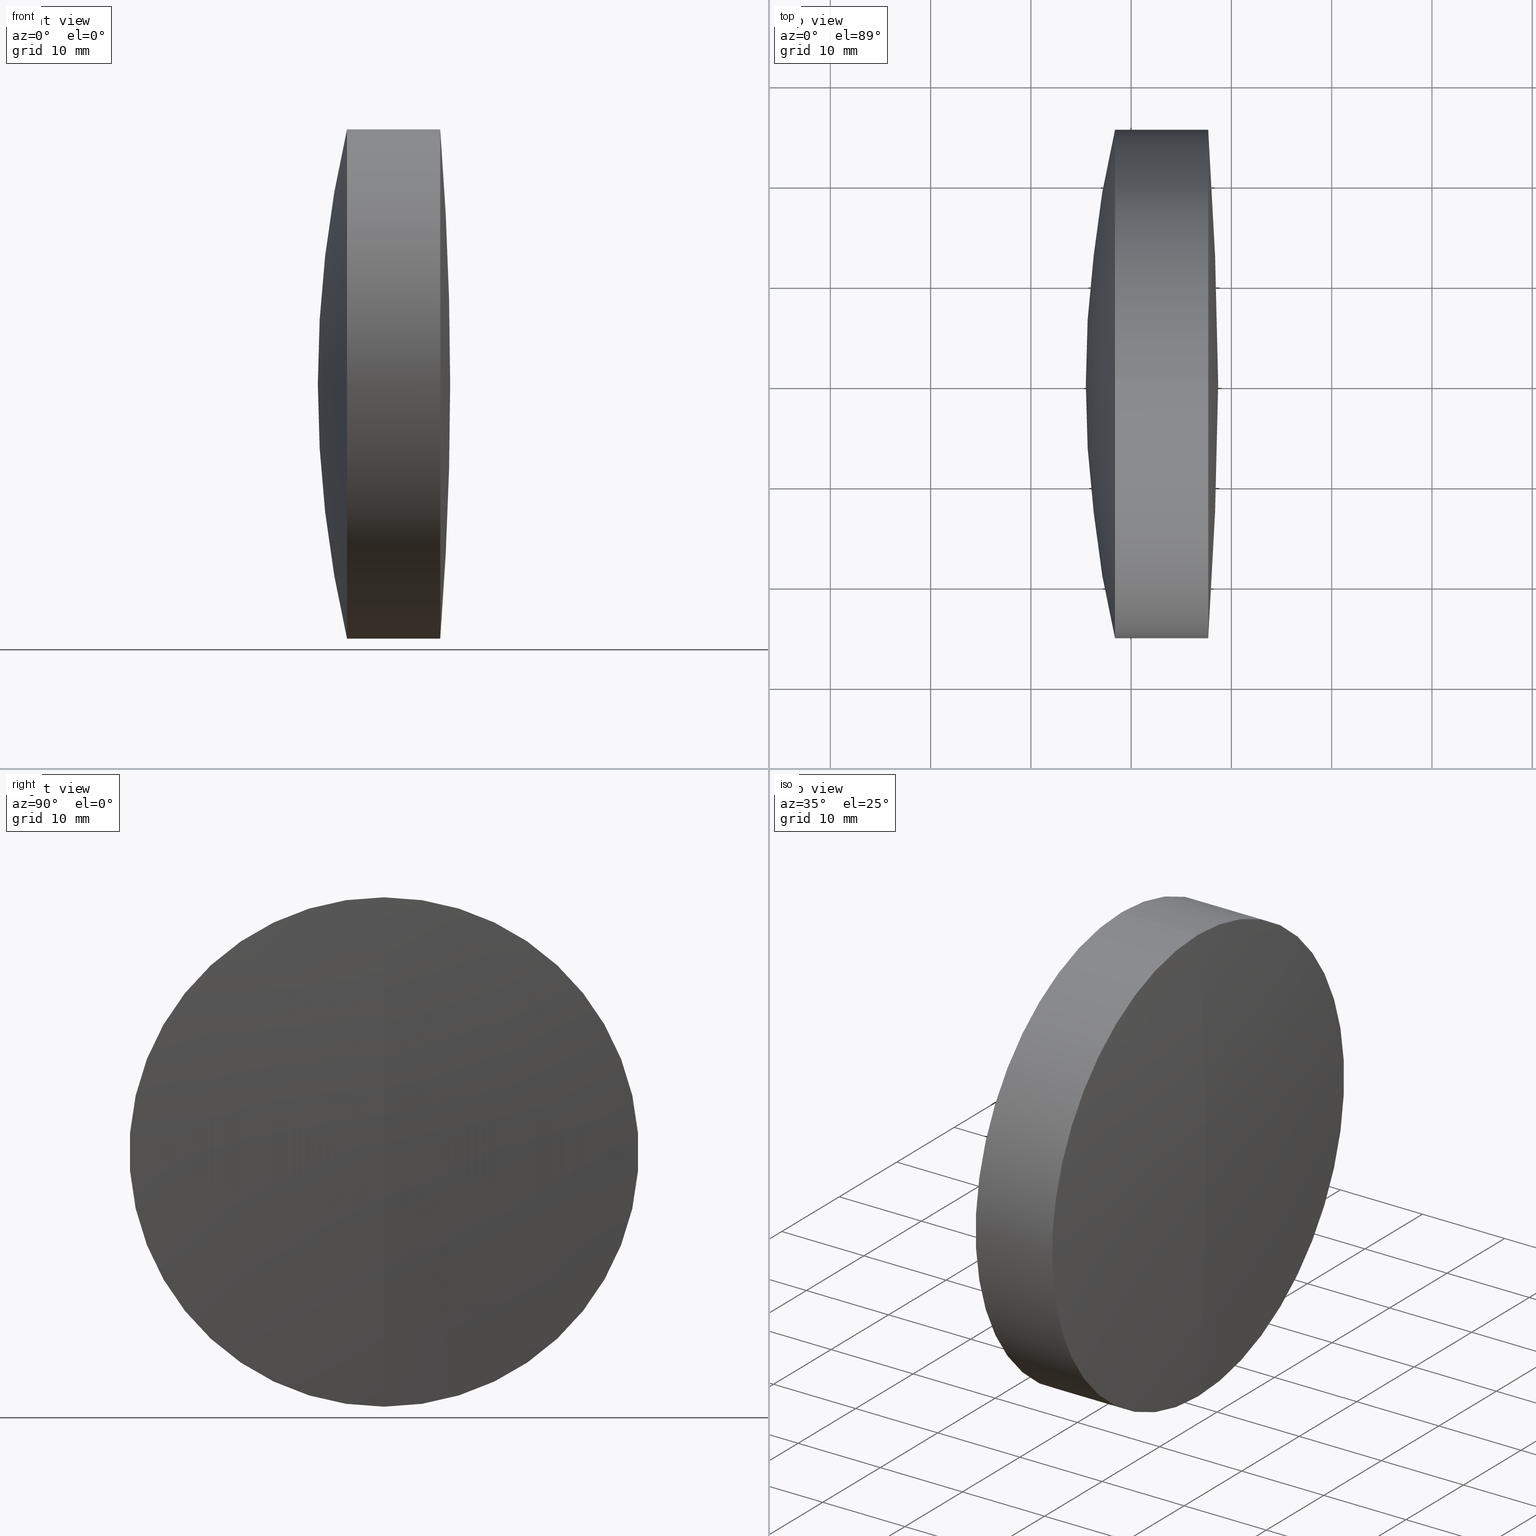
[diagram: canonical four-view strip — front | top / right | iso, engineering-drawing reading convention]
A machine part, canonical four-view strip (front | top / right | iso — engineering-drawing reading convention). The complete STEP part file that produces these views, byte-faithful:
ISO-10303-21;
HEADER;
FILE_DESCRIPTION (( 'STEP AP214' ),
    '1' );
FILE_NAME ('145136.STEP',
    '2019-06-05T02:14:15',
    ( 'user' ),
    ( '΢���й�' ),
    'SwSTEP 2.0',
    'SolidWorks 2016',
    '' );
FILE_SCHEMA (( 'AUTOMOTIVE_DESIGN' ));
ENDSEC;

DATA;
#1 = AXIS2_PLACEMENT_3D ( 'NONE', #240, #75, #251 ) ;
#2 = ORIENTED_EDGE ( 'NONE', *, *, #297, .F. ) ;
#3 = CARTESIAN_POINT ( 'NONE',  ( 124.5233095260452400, 3.110602869834276100E-015, -25.39999999999999100 ) ) ;
#4 = ORIENTED_EDGE ( 'NONE', *, *, #304, .T. ) ;
#5 = CIRCLE ( 'NONE', #319, 25.40000000000004800 ) ;
#6 = EDGE_LOOP ( 'NONE', ( #318, #256, #2, #66 ) ) ;
#7 = CARTESIAN_POINT ( 'NONE',  ( 657.6805592743230600, 0.0000000000000000000, -8.998188785850827300E-015 ) ) ;
#8 = MECHANICAL_DESIGN_GEOMETRIC_PRESENTATION_REPRESENTATION (  '', ( #145 ), #246 ) ;
#9 = CIRCLE ( 'NONE', #241, 25.39999999999997000 ) ;
#10 = CYLINDRICAL_SURFACE ( 'NONE', #160, 25.40000000000000900 ) ;
#11 = SPHERICAL_SURFACE ( 'NONE', #189, 325.1000000000000200 ) ;
#12 = CARTESIAN_POINT ( 'NONE',  ( 550.2556910666054400, 0.0000000000000000000, 0.0000000000000000000 ) ) ;
#13 = AXIS2_PLACEMENT_3D ( 'NONE', #343, #135, #202 ) ;
#14 = ORIENTED_EDGE ( 'NONE', *, *, #17, .F. ) ;
#15 = EDGE_CURVE ( 'NONE', #117, #81, #157, .T. ) ;
#16 = CIRCLE ( 'NONE', #130, 325.1000000000000200 ) ;
#17 = EDGE_CURVE ( 'NONE', #113, #260, #328, .T. ) ;
#18 = ADVANCED_FACE ( 'NONE', ( #57 ), #239, .T. ) ;
#19 = AXIS2_PLACEMENT_3D ( 'NONE', #141, #326, #327 ) ;
#20 = EDGE_LOOP ( 'NONE', ( #266, #142, #128 ) ) ;
#21 = EDGE_CURVE ( 'NONE', #257, #132, #250, .T. ) ;
#22 = CARTESIAN_POINT ( 'NONE',  ( 545.4805592743229000, 0.0000000000000000000, -2.127920242634172300E-015 ) ) ;
#23 = FACE_OUTER_BOUND ( 'NONE', #44, .T. ) ;
#24 = DIRECTION ( 'NONE',  ( 0.0000000000000000000, 0.0000000000000000000, 1.000000000000000000 ) ) ;
#25 = CARTESIAN_POINT ( 'NONE',  ( -0.5519199926577972300, 0.0000000000000000000, 0.0000000000000000000 ) ) ;
#26 = STYLED_ITEM ( 'NONE', ( #139 ), #97 ) ;
#27 = CIRCLE ( 'NONE', #103, 95.89999999999999100 ) ;
#28 = FILL_AREA_STYLE_COLOUR ( '', #295 ) ;
#29 = DIRECTION ( 'NONE',  ( 0.0000000000000000000, -1.224646799147353500E-016, 1.000000000000000000 ) ) ;
#30 = ORIENTED_EDGE ( 'NONE', *, *, #155, .T. ) ;
#31 = CARTESIAN_POINT ( 'NONE',  ( -0.5519199926577972300, 0.0000000000000000000, 0.0000000000000000000 ) ) ;
#32 = FACE_OUTER_BOUND ( 'NONE', #45, .T. ) ;
#33 = AXIS2_PLACEMENT_3D ( 'NONE', #315, #67, #263 ) ;
#34 = DIRECTION ( 'NONE',  ( -1.000000000000000000, -0.0000000000000000000, -0.0000000000000000000 ) ) ;
#35 = DIRECTION ( 'NONE',  ( 0.0000000000000000000, -1.000000000000000000, 0.0000000000000000000 ) ) ;
#36 = VECTOR ( 'NONE', #149, 1000.000000000000000 ) ;
#37 = ORIENTED_EDGE ( 'NONE', *, *, #207, .F. ) ;
#38 = SURFACE_STYLE_FILL_AREA ( #47 ) ;
#39 = FILL_AREA_STYLE_COLOUR ( '', #268 ) ;
#40 = CARTESIAN_POINT ( 'NONE',  ( 548.3934145591277900, 0.0000000000000000000, 0.0000000000000000000 ) ) ;
#41 = AXIS2_PLACEMENT_3D ( 'NONE', #281, #159, #119 ) ;
#42 = CYLINDRICAL_SURFACE ( 'NONE', #204, 25.39999999999999100 ) ;
#43 = DIRECTION ( 'NONE',  ( 0.0000000000000000000, -1.000000000000000000, 0.0000000000000000000 ) ) ;
#44 = EDGE_LOOP ( 'NONE', ( #52, #338, #14 ) ) ;
#45 = EDGE_LOOP ( 'NONE', ( #278, #237, #248 ) ) ;
#46 = SPHERICAL_SURFACE ( 'NONE', #317, 112.2000000000000600 ) ;
#47 = FILL_AREA_STYLE ('',( #39 ) ) ;
#48 = MANIFOLD_SOLID_BREP ( '��ת1', #200 ) ;
#49 = VERTEX_POINT ( 'NONE', #22 ) ;
#50 = DIRECTION ( 'NONE',  ( 0.0000000000000000000, 0.0000000000000000000, 1.000000000000000000 ) ) ;
#51 = AXIS2_PLACEMENT_3D ( 'NONE', #184, #87, #136 ) ;
#52 = ORIENTED_EDGE ( 'NONE', *, *, #304, .F. ) ;
#53 = CARTESIAN_POINT ( 'NONE',  ( 557.6867918586409600, 0.0000000000000000000, 25.39999999999997000 ) ) ;
#54 = CARTESIAN_POINT ( 'NONE',  ( 557.6867918586409600, 3.110602869834276100E-015, -25.39999999999997000 ) ) ;
#55 = ORIENTED_EDGE ( 'NONE', *, *, #288, .T. ) ;
#56 = CARTESIAN_POINT ( 'NONE',  ( 550.2556910666054400, 0.0000000000000000000, 25.40000000000002700 ) ) ;
#57 = FACE_OUTER_BOUND ( 'NONE', #217, .T. ) ;
#58 = DIRECTION ( 'NONE',  ( -1.000000000000000000, -0.0000000000000000000, -0.0000000000000000000 ) ) ;
#59 = EDGE_LOOP ( 'NONE', ( #340, #316, #114 ) ) ;
#60 = LINE ( 'NONE', #3, #273 ) ;
#61 = AXIS2_PLACEMENT_3D ( 'NONE', #208, #201, #282 ) ;
#62 = CARTESIAN_POINT ( 'NONE',  ( 553.6805592743230600, 0.0000000000000000000, -5.818154175276403000E-016 ) ) ;
#63 = EDGE_CURVE ( 'NONE', #174, #287, #215, .T. ) ;
#64 = SURFACE_STYLE_USAGE ( .BOTH. , #116 ) ;
#65 = DIRECTION ( 'NONE',  ( 0.0000000000000000000, 0.0000000000000000000, 1.000000000000000000 ) ) ;
#66 = ORIENTED_EDGE ( 'NONE', *, *, #198, .F. ) ;
#67 = DIRECTION ( 'NONE',  ( 0.0000000000000000000, 1.000000000000000000, 0.0000000000000000000 ) ) ;
#68 = AXIS2_PLACEMENT_3D ( 'NONE', #123, #244, #82 ) ;
#69 = CARTESIAN_POINT ( 'NONE',  ( 550.2556910666054400, 3.110602869834276100E-015, -25.39999999999999100 ) ) ;
#70 = FACE_OUTER_BOUND ( 'NONE', #224, .T. ) ;
#71 = FACE_OUTER_BOUND ( 'NONE', #209, .T. ) ;
#72 = DIRECTION ( 'NONE',  ( 0.0000000000000000000, 0.0000000000000000000, 1.000000000000000000 ) ) ;
#73 = ORIENTED_EDGE ( 'NONE', *, *, #205, .T. ) ;
#74 = AXIS2_PLACEMENT_3D ( 'NONE', #85, #299, #29 ) ;
#75 = DIRECTION ( 'NONE',  ( 0.0000000000000000000, -1.000000000000000000, 0.0000000000000000000 ) ) ;
#76 = SPHERICAL_SURFACE ( 'NONE', #110, 95.89999999999999100 ) ;
#77 = CIRCLE ( 'NONE', #187, 25.40000000000004800 ) ;
#78 = DIRECTION ( 'NONE',  ( 0.0000000000000000000, 0.0000000000000000000, 1.000000000000000000 ) ) ;
#79 = CARTESIAN_POINT ( 'NONE',  ( -0.5519199926577972300, 3.110602869834278000E-015, -25.40000000000000900 ) ) ;
#80 = CARTESIAN_POINT ( 'NONE',  ( -0.5519199926577972300, 0.0000000000000000000, 25.40000000000000900 ) ) ;
#81 = VERTEX_POINT ( 'NONE', #226 ) ;
#82 = DIRECTION ( 'NONE',  ( 0.0000000000000000000, -1.224646799147353000E-016, 1.000000000000000000 ) ) ;
#83 =( NAMED_UNIT ( * ) SI_UNIT ( $, .STERADIAN. ) SOLID_ANGLE_UNIT ( ) );
#84 = FACE_OUTER_BOUND ( 'NONE', #59, .T. ) ;
#85 = CARTESIAN_POINT ( 'NONE',  ( 657.6805592743230600, 0.0000000000000000000, -8.998188785850827300E-015 ) ) ;
#86 = EDGE_CURVE ( 'NONE', #300, #287, #177, .T. ) ;
#87 = DIRECTION ( 'NONE',  ( 0.0000000000000000000, 1.000000000000000000, 0.0000000000000000000 ) ) ;
#88 = EDGE_LOOP ( 'NONE', ( #330, #122, #308, #225 ) ) ;
#89 = EDGE_CURVE ( 'NONE', #174, #300, #16, .T. ) ;
#90 = LINE ( 'NONE', #79, #176 ) ;
#91 =( LENGTH_UNIT ( ) NAMED_UNIT ( * ) SI_UNIT ( .MILLI., .METRE. ) );
#92 = CIRCLE ( 'NONE', #74, 112.2000000000000600 ) ;
#93 = APPLICATION_CONTEXT ( 'automotive_design' ) ;
#94 =( GEOMETRIC_REPRESENTATION_CONTEXT ( 3 ) GLOBAL_UNCERTAINTY_ASSIGNED_CONTEXT ( ( #227 ) ) GLOBAL_UNIT_ASSIGNED_CONTEXT ( ( #170, #245, #83 ) ) REPRESENTATION_CONTEXT ( 'NONE', 'WORKASPACE' ) );
#95 = ORIENTED_EDGE ( 'NONE', *, *, #231, .F. ) ;
#96 = SURFACE_STYLE_FILL_AREA ( #143 ) ;
#97 = MANIFOLD_SOLID_BREP ( '��ת3', #188 ) ;
#98 = CARTESIAN_POINT ( 'NONE',  ( 557.6867918586409600, 0.0000000000000000000, 0.0000000000000000000 ) ) ;
#99 =( NAMED_UNIT ( * ) PLANE_ANGLE_UNIT ( ) SI_UNIT ( $, .RADIAN. ) );
#100 = MECHANICAL_DESIGN_GEOMETRIC_PRESENTATION_REPRESENTATION (  '', ( #228 ), #333 ) ;
#101 = APPLICATION_PROTOCOL_DEFINITION ( 'draft international standard', 'automotive_design', 1998, #93 ) ;
#102 = SURFACE_STYLE_USAGE ( .BOTH. , #126 ) ;
#103 = AXIS2_PLACEMENT_3D ( 'NONE', #339, #35, #345 ) ;
#104 = DIRECTION ( 'NONE',  ( 0.0000000000000000000, 0.0000000000000000000, 1.000000000000000000 ) ) ;
#105 = PRESENTATION_STYLE_ASSIGNMENT (( #112 ) ) ;
#106 = AXIS2_PLACEMENT_3D ( 'NONE', #344, #197, #72 ) ;
#107 = ORIENTED_EDGE ( 'NONE', *, *, #297, .T. ) ;
#108 = COLOUR_RGB ( '',1.000000000000000000, 1.000000000000000000, 1.000000000000000000 ) ;
#109 = CARTESIAN_POINT ( 'NONE',  ( 557.6867918586409600, 0.0000000000000000000, 0.0000000000000000000 ) ) ;
#110 = AXIS2_PLACEMENT_3D ( 'NONE', #151, #243, #324 ) ;
#111 = PRODUCT ( '145136', '145136', '', ( #220 ) ) ;
#112 = SURFACE_STYLE_USAGE ( .BOTH. , #277 ) ;
#113 = VERTEX_POINT ( 'NONE', #69 ) ;
#114 = ORIENTED_EDGE ( 'NONE', *, *, #152, .T. ) ;
#115 = LINE ( 'NONE', #80, #140 ) ;
#116 = SURFACE_SIDE_STYLE ('',( #96 ) ) ;
#117 = VERTEX_POINT ( 'NONE', #258 ) ;
#118 =( LENGTH_UNIT ( ) NAMED_UNIT ( * ) SI_UNIT ( .MILLI., .METRE. ) );
#119 = DIRECTION ( 'NONE',  ( 0.0000000000000000000, -1.224646799147353000E-016, 1.000000000000000000 ) ) ;
#120 = UNCERTAINTY_MEASURE_WITH_UNIT (LENGTH_MEASURE( 1.000000000000000100E-005 ), #91, 'distance_accuracy_value', 'NONE');
#121 = EDGE_CURVE ( 'NONE', #230, #260, #27, .T. ) ;
#122 = ORIENTED_EDGE ( 'NONE', *, *, #17, .T. ) ;
#123 = CARTESIAN_POINT ( 'NONE',  ( 457.7805592743230200, 0.0000000000000000000, -6.453996819439198100E-015 ) ) ;
#124 = DIRECTION ( 'NONE',  ( 0.0000000000000000000, 0.0000000000000000000, 1.000000000000000000 ) ) ;
#125 = ORIENTED_EDGE ( 'NONE', *, *, #288, .F. ) ;
#126 = SURFACE_SIDE_STYLE ('',( #191 ) ) ;
#127 = CIRCLE ( 'NONE', #336, 25.39999999999999100 ) ;
#128 = ORIENTED_EDGE ( 'NONE', *, *, #137, .F. ) ;
#129 = ADVANCED_FACE ( 'NONE', ( #70 ), #206, .T. ) ;
#130 = AXIS2_PLACEMENT_3D ( 'NONE', #214, #43, #303 ) ;
#131 = ADVANCED_FACE ( 'NONE', ( #301 ), #42, .T. ) ;
#132 = VERTEX_POINT ( 'NONE', #56 ) ;
#133 = CARTESIAN_POINT ( 'NONE',  ( 558.6805592743230600, 0.0000000000000000000, 1.990663372014022500E-014 ) ) ;
#134 = CARTESIAN_POINT ( 'NONE',  ( 457.7805592743230200, 0.0000000000000000000, -6.453996819439198100E-015 ) ) ;
#135 = DIRECTION ( 'NONE',  ( -1.000000000000000000, -0.0000000000000000000, -0.0000000000000000000 ) ) ;
#136 = DIRECTION ( 'NONE',  ( 0.0000000000000000000, 0.0000000000000000000, 1.000000000000000000 ) ) ;
#137 = EDGE_CURVE ( 'NONE', #287, #300, #9, .T. ) ;
#138 = ORIENTED_EDGE ( 'NONE', *, *, #86, .F. ) ;
#139 = PRESENTATION_STYLE_ASSIGNMENT (( #64 ) ) ;
#140 = VECTOR ( 'NONE', #296, 1000.000000000000000 ) ;
#141 = CARTESIAN_POINT ( 'NONE',  ( 550.2556910666054400, 0.0000000000000000000, 0.0000000000000000000 ) ) ;
#142 = ORIENTED_EDGE ( 'NONE', *, *, #89, .T. ) ;
#143 = FILL_AREA_STYLE ('',( #323 ) ) ;
#144 = ORIENTED_EDGE ( 'NONE', *, *, #155, .F. ) ;
#145 = STYLED_ITEM ( 'NONE', ( #105 ), #48 ) ;
#146 = DIRECTION ( 'NONE',  ( 0.0000000000000000000, 1.000000000000000000, 0.0000000000000000000 ) ) ;
#147 = AXIS2_PLACEMENT_3D ( 'NONE', #320, #164, #276 ) ;
#148 = ORIENTED_EDGE ( 'NONE', *, *, #121, .F. ) ;
#149 = DIRECTION ( 'NONE',  ( -1.000000000000000000, -0.0000000000000000000, -0.0000000000000000000 ) ) ;
#150 = LINE ( 'NONE', #305, #36 ) ;
#151 = CARTESIAN_POINT ( 'NONE',  ( 457.7805592743230200, 0.0000000000000000000, -6.453996819439198100E-015 ) ) ;
#152 = EDGE_CURVE ( 'NONE', #132, #286, #5, .T. ) ;
#153 = ORIENTED_EDGE ( 'NONE', *, *, #180, .F. ) ;
#154 = PRODUCT_DEFINITION_SHAPE ( 'NONE', 'NONE',  #167 ) ;
#155 = EDGE_CURVE ( 'NONE', #287, #286, #90, .T. ) ;
#156 = SHAPE_DEFINITION_REPRESENTATION ( #154, #290 ) ;
#157 = CIRCLE ( 'NONE', #264, 25.39999999999998800 ) ;
#158 = ADVANCED_FACE ( 'NONE', ( #195 ), #10, .T. ) ;
#159 = DIRECTION ( 'NONE',  ( -0.0000000000000000000, 1.000000000000000000, 1.224646799147353200E-016 ) ) ;
#160 = AXIS2_PLACEMENT_3D ( 'NONE', #25, #242, #24 ) ;
#161 = SPHERICAL_SURFACE ( 'NONE', #33, 112.2000000000000600 ) ;
#162 = ADVANCED_FACE ( 'NONE', ( #302 ), #222, .T. ) ;
#163 = ORIENTED_EDGE ( 'NONE', *, *, #63, .T. ) ;
#164 = DIRECTION ( 'NONE',  ( 0.0000000000000000000, 0.0000000000000000000, 1.000000000000000000 ) ) ;
#165 = PRESENTATION_STYLE_ASSIGNMENT (( #102 ) ) ;
#166 = CIRCLE ( 'NONE', #68, 95.89999999999999100 ) ;
#167 = PRODUCT_DEFINITION ( 'δ֪', '', #185, #221 ) ;
#168 = UNCERTAINTY_MEASURE_WITH_UNIT (LENGTH_MEASURE( 1.000000000000000100E-005 ), #118, 'distance_accuracy_value', 'NONE');
#169 = DIRECTION ( 'NONE',  ( 0.0000000000000000000, 1.000000000000000000, 0.0000000000000000000 ) ) ;
#170 =( LENGTH_UNIT ( ) NAMED_UNIT ( * ) SI_UNIT ( .MILLI., .METRE. ) );
#171 = CARTESIAN_POINT ( 'NONE',  ( 124.5233095260452400, 0.0000000000000000000, 0.0000000000000000000 ) ) ;
#172 = DIRECTION ( 'NONE',  ( -1.000000000000000000, -0.0000000000000000000, -0.0000000000000000000 ) ) ;
#173 = DIRECTION ( 'NONE',  ( 0.0000000000000000000, 1.000000000000000000, 0.0000000000000000000 ) ) ;
#174 = VERTEX_POINT ( 'NONE', #133 ) ;
#175 = CARTESIAN_POINT ( 'NONE',  ( 553.6805592743230600, 0.0000000000000000000, -5.818154175276403000E-016 ) ) ;
#176 = VECTOR ( 'NONE', #312, 1000.000000000000000 ) ;
#177 = CIRCLE ( 'NONE', #252, 25.39999999999997000 ) ;
#178 = ORIENTED_EDGE ( 'NONE', *, *, #89, .F. ) ;
#179 = EDGE_CURVE ( 'NONE', #113, #117, #60, .T. ) ;
#180 = EDGE_CURVE ( 'NONE', #286, #132, #77, .T. ) ;
#181 = ORIENTED_EDGE ( 'NONE', *, *, #207, .T. ) ;
#182 = DIRECTION ( 'NONE',  ( 0.0000000000000000000, -1.000000000000000000, 0.0000000000000000000 ) ) ;
#183 = ADVANCED_FACE ( 'NONE', ( #293 ), #46, .T. ) ;
#184 = CARTESIAN_POINT ( 'NONE',  ( 233.5805592743230400, 0.0000000000000000000, 0.0000000000000000000 ) ) ;
#185 = PRODUCT_DEFINITION_FORMATION_WITH_SPECIFIED_SOURCE ( '�κ�', '', #111, .NOT_KNOWN. ) ;
#186 = APPLICATION_PROTOCOL_DEFINITION ( 'draft international standard', 'automotive_design', 1998, #289 ) ;
#187 = AXIS2_PLACEMENT_3D ( 'NONE', #307, #306, #196 ) ;
#188 = CLOSED_SHELL ( 'NONE', ( #213, #129, #314, #216, #158, #265 ) ) ;
#189 = AXIS2_PLACEMENT_3D ( 'NONE', #275, #146, #65 ) ;
#190 = ORIENTED_EDGE ( 'NONE', *, *, #15, .T. ) ;
#191 = SURFACE_STYLE_FILL_AREA ( #259 ) ;
#192 = DIRECTION ( 'NONE',  ( -1.000000000000000000, -0.0000000000000000000, -0.0000000000000000000 ) ) ;
#193 = ORIENTED_EDGE ( 'NONE', *, *, #205, .F. ) ;
#194 = CARTESIAN_POINT ( 'NONE',  ( 657.6805592743230600, 0.0000000000000000000, -8.998188785850827300E-015 ) ) ;
#195 = FACE_OUTER_BOUND ( 'NONE', #223, .T. ) ;
#196 = DIRECTION ( 'NONE',  ( 0.0000000000000000000, 0.0000000000000000000, 1.000000000000000000 ) ) ;
#197 = DIRECTION ( 'NONE',  ( 0.0000000000000000000, 1.000000000000000000, 0.0000000000000000000 ) ) ;
#198 = EDGE_CURVE ( 'NONE', #260, #81, #150, .T. ) ;
#199 =( LENGTH_UNIT ( ) NAMED_UNIT ( * ) SI_UNIT ( .MILLI., .METRE. ) );
#200 = CLOSED_SHELL ( 'NONE', ( #18, #131, #183, #262, #162, #337 ) ) ;
#201 = DIRECTION ( 'NONE',  ( 0.0000000000000000000, 1.000000000000000000, 0.0000000000000000000 ) ) ;
#202 = DIRECTION ( 'NONE',  ( 0.0000000000000000000, 0.0000000000000000000, 1.000000000000000000 ) ) ;
#203 = EDGE_CURVE ( 'NONE', #257, #286, #238, .T. ) ;
#204 = AXIS2_PLACEMENT_3D ( 'NONE', #171, #249, #331 ) ;
#205 = EDGE_CURVE ( 'NONE', #81, #49, #329, .T. ) ;
#206 = CYLINDRICAL_SURFACE ( 'NONE', #269, 25.40000000000000900 ) ;
#207 = EDGE_CURVE ( 'NONE', #117, #49, #92, .T. ) ;
#208 = CARTESIAN_POINT ( 'NONE',  ( 457.7805592743230200, 0.0000000000000000000, -6.453996819439198100E-015 ) ) ;
#209 = EDGE_LOOP ( 'NONE', ( #37, #190, #73 ) ) ;
#210 =( GEOMETRIC_REPRESENTATION_CONTEXT ( 3 ) GLOBAL_UNCERTAINTY_ASSIGNED_CONTEXT ( ( #120 ) ) GLOBAL_UNIT_ASSIGNED_CONTEXT ( ( #91, #279, #347 ) ) REPRESENTATION_CONTEXT ( 'NONE', 'WORKASPACE' ) );
#211 = CARTESIAN_POINT ( 'NONE',  ( 550.2556910666054400, 0.0000000000000000000, 25.39999999999999100 ) ) ;
#212 = FACE_OUTER_BOUND ( 'NONE', #270, .T. ) ;
#213 = ADVANCED_FACE ( 'NONE', ( #212 ), #11, .T. ) ;
#214 = CARTESIAN_POINT ( 'NONE',  ( 233.5805592743230400, 0.0000000000000000000, 0.0000000000000000000 ) ) ;
#215 = CIRCLE ( 'NONE', #41, 325.1000000000000200 ) ;
#216 = ADVANCED_FACE ( 'NONE', ( #84 ), #346, .F. ) ;
#217 = EDGE_LOOP ( 'NONE', ( #148, #4, #95 ) ) ;
#218 = CARTESIAN_POINT ( 'NONE',  ( 550.2556910666054400, 0.0000000000000000000, 0.0000000000000000000 ) ) ;
#219 = DIRECTION ( 'NONE',  ( -1.000000000000000000, -0.0000000000000000000, -0.0000000000000000000 ) ) ;
#220 = PRODUCT_CONTEXT ( 'NONE', #289, 'mechanical' ) ;
#221 = PRODUCT_DEFINITION_CONTEXT ( 'detailed design', #93, 'design' ) ;
#222 = CYLINDRICAL_SURFACE ( 'NONE', #285, 25.39999999999999100 ) ;
#223 = EDGE_LOOP ( 'NONE', ( #144, #310, #55, #153 ) ) ;
#224 = EDGE_LOOP ( 'NONE', ( #334, #30, #325, #125 ) ) ;
#225 = ORIENTED_EDGE ( 'NONE', *, *, #15, .F. ) ;
#226 = CARTESIAN_POINT ( 'NONE',  ( 548.3934145591277900, 0.0000000000000000000, 25.39999999999999100 ) ) ;
#227 = UNCERTAINTY_MEASURE_WITH_UNIT (LENGTH_MEASURE( 1.000000000000000100E-005 ), #170, 'distance_accuracy_value', 'NONE');
#228 = STYLED_ITEM ( 'NONE', ( #165 ), #290 ) ;
#229 =( NAMED_UNIT ( * ) PLANE_ANGLE_UNIT ( ) SI_UNIT ( $, .RADIAN. ) );
#230 = VERTEX_POINT ( 'NONE', #62 ) ;
#231 = EDGE_CURVE ( 'NONE', #260, #113, #127, .T. ) ;
#232 = SPHERICAL_SURFACE ( 'NONE', #106, 95.89999999999999100 ) ;
#233 = DIRECTION ( 'NONE',  ( -1.000000000000000000, -0.0000000000000000000, -0.0000000000000000000 ) ) ;
#234 = DIRECTION ( 'NONE',  ( 0.0000000000000000000, 0.0000000000000000000, 1.000000000000000000 ) ) ;
#235 = PRODUCT_RELATED_PRODUCT_CATEGORY ( 'part', '', ( #111 ) ) ;
#236 = DIRECTION ( 'NONE',  ( 0.0000000000000000000, 0.0000000000000000000, 1.000000000000000000 ) ) ;
#237 = ORIENTED_EDGE ( 'NONE', *, *, #203, .T. ) ;
#238 = CIRCLE ( 'NONE', #271, 95.89999999999999100 ) ;
#239 = SPHERICAL_SURFACE ( 'NONE', #61, 95.89999999999999100 ) ;
#240 = CARTESIAN_POINT ( 'NONE',  ( 457.7805592743230200, 0.0000000000000000000, -6.453996819439198100E-015 ) ) ;
#241 = AXIS2_PLACEMENT_3D ( 'NONE', #109, #272, #78 ) ;
#242 = DIRECTION ( 'NONE',  ( -1.000000000000000000, -0.0000000000000000000, -0.0000000000000000000 ) ) ;
#243 = DIRECTION ( 'NONE',  ( 0.0000000000000000000, 1.000000000000000000, 0.0000000000000000000 ) ) ;
#244 = DIRECTION ( 'NONE',  ( -0.0000000000000000000, 1.000000000000000000, 1.224646799147353200E-016 ) ) ;
#245 =( NAMED_UNIT ( * ) PLANE_ANGLE_UNIT ( ) SI_UNIT ( $, .RADIAN. ) );
#246 =( GEOMETRIC_REPRESENTATION_CONTEXT ( 3 ) GLOBAL_UNCERTAINTY_ASSIGNED_CONTEXT ( ( #253 ) ) GLOBAL_UNIT_ASSIGNED_CONTEXT ( ( #199, #229, #254 ) ) REPRESENTATION_CONTEXT ( 'NONE', 'WORKASPACE' ) );
#247 = DIRECTION ( 'NONE',  ( -1.000000000000000000, -0.0000000000000000000, -0.0000000000000000000 ) ) ;
#248 = ORIENTED_EDGE ( 'NONE', *, *, #180, .T. ) ;
#249 = DIRECTION ( 'NONE',  ( -1.000000000000000000, -0.0000000000000000000, -0.0000000000000000000 ) ) ;
#250 = CIRCLE ( 'NONE', #1, 95.89999999999999100 ) ;
#251 = DIRECTION ( 'NONE',  ( 0.0000000000000000000, 0.0000000000000000000, -1.000000000000000000 ) ) ;
#252 = AXIS2_PLACEMENT_3D ( 'NONE', #98, #58, #104 ) ;
#253 = UNCERTAINTY_MEASURE_WITH_UNIT (LENGTH_MEASURE( 1.000000000000000100E-005 ), #199, 'distance_accuracy_value', 'NONE');
#254 =( NAMED_UNIT ( * ) SI_UNIT ( $, .STERADIAN. ) SOLID_ANGLE_UNIT ( ) );
#255 = MECHANICAL_DESIGN_GEOMETRIC_PRESENTATION_REPRESENTATION (  '', ( #26 ), #210 ) ;
#256 = ORIENTED_EDGE ( 'NONE', *, *, #179, .T. ) ;
#257 = VERTEX_POINT ( 'NONE', #175 ) ;
#258 = CARTESIAN_POINT ( 'NONE',  ( 548.3934145591277900, 3.110602869834276500E-015, -25.40000000000000600 ) ) ;
#259 = FILL_AREA_STYLE ('',( #28 ) ) ;
#260 = VERTEX_POINT ( 'NONE', #211 ) ;
#261 = DIRECTION ( 'NONE',  ( 0.0000000000000000000, 0.0000000000000000000, 1.000000000000000000 ) ) ;
#262 = ADVANCED_FACE ( 'NONE', ( #71 ), #161, .T. ) ;
#263 = DIRECTION ( 'NONE',  ( 0.0000000000000000000, 0.0000000000000000000, 1.000000000000000000 ) ) ;
#264 = AXIS2_PLACEMENT_3D ( 'NONE', #40, #219, #261 ) ;
#265 = ADVANCED_FACE ( 'NONE', ( #280 ), #311, .T. ) ;
#266 = ORIENTED_EDGE ( 'NONE', *, *, #63, .F. ) ;
#267 = DIRECTION ( 'NONE',  ( 0.0000000000000000000, -1.224646799147353000E-016, 1.000000000000000000 ) ) ;
#268 = COLOUR_RGB ( '',1.000000000000000000, 1.000000000000000000, 1.000000000000000000 ) ;
#269 = AXIS2_PLACEMENT_3D ( 'NONE', #31, #34, #291 ) ;
#270 = EDGE_LOOP ( 'NONE', ( #178, #163, #138 ) ) ;
#271 = AXIS2_PLACEMENT_3D ( 'NONE', #134, #335, #267 ) ;
#272 = DIRECTION ( 'NONE',  ( -1.000000000000000000, -0.0000000000000000000, -0.0000000000000000000 ) ) ;
#273 = VECTOR ( 'NONE', #172, 1000.000000000000000 ) ;
#274 = CARTESIAN_POINT ( 'NONE',  ( 550.2556910666054400, 3.110602869834279600E-015, -25.40000000000003400 ) ) ;
#275 = CARTESIAN_POINT ( 'NONE',  ( 233.5805592743230400, 0.0000000000000000000, 0.0000000000000000000 ) ) ;
#276 = DIRECTION ( 'NONE',  ( 1.000000000000000000, 0.0000000000000000000, 0.0000000000000000000 ) ) ;
#277 = SURFACE_SIDE_STYLE ('',( #38 ) ) ;
#278 = ORIENTED_EDGE ( 'NONE', *, *, #21, .F. ) ;
#279 =( NAMED_UNIT ( * ) PLANE_ANGLE_UNIT ( ) SI_UNIT ( $, .RADIAN. ) );
#280 = FACE_OUTER_BOUND ( 'NONE', #20, .T. ) ;
#281 = CARTESIAN_POINT ( 'NONE',  ( 233.5805592743230400, 0.0000000000000000000, 0.0000000000000000000 ) ) ;
#282 = DIRECTION ( 'NONE',  ( 0.0000000000000000000, 0.0000000000000000000, 1.000000000000000000 ) ) ;
#283 = CIRCLE ( 'NONE', #13, 25.39999999999998800 ) ;
#284 = PRESENTATION_LAYER_ASSIGNMENT (  '', '', ( #145 ) ) ;
#285 = AXIS2_PLACEMENT_3D ( 'NONE', #321, #247, #341 ) ;
#286 = VERTEX_POINT ( 'NONE', #274 ) ;
#287 = VERTEX_POINT ( 'NONE', #54 ) ;
#288 = EDGE_CURVE ( 'NONE', #300, #132, #115, .T. ) ;
#289 = APPLICATION_CONTEXT ( 'automotive_design' ) ;
#290 = ADVANCED_BREP_SHAPE_REPRESENTATION ( '145136', ( #48, #97, #147 ), #94 ) ;
#291 = DIRECTION ( 'NONE',  ( 0.0000000000000000000, 0.0000000000000000000, 1.000000000000000000 ) ) ;
#292 = CARTESIAN_POINT ( 'NONE',  ( 457.7805592743230200, 0.0000000000000000000, -6.453996819439198100E-015 ) ) ;
#293 = FACE_OUTER_BOUND ( 'NONE', #298, .T. ) ;
#294 =( NAMED_UNIT ( * ) SI_UNIT ( $, .STERADIAN. ) SOLID_ANGLE_UNIT ( ) );
#295 = COLOUR_RGB ( '',1.000000000000000000, 1.000000000000000000, 1.000000000000000000 ) ;
#296 = DIRECTION ( 'NONE',  ( -1.000000000000000000, -0.0000000000000000000, -0.0000000000000000000 ) ) ;
#297 = EDGE_CURVE ( 'NONE', #81, #117, #283, .T. ) ;
#298 = EDGE_LOOP ( 'NONE', ( #107, #181, #193 ) ) ;
#299 = DIRECTION ( 'NONE',  ( -0.0000000000000000000, 1.000000000000000000, 1.224646799147353200E-016 ) ) ;
#300 = VERTEX_POINT ( 'NONE', #53 ) ;
#301 = FACE_OUTER_BOUND ( 'NONE', #6, .T. ) ;
#302 = FACE_OUTER_BOUND ( 'NONE', #88, .T. ) ;
#303 = DIRECTION ( 'NONE',  ( 0.0000000000000000000, 0.0000000000000000000, -1.000000000000000000 ) ) ;
#304 = EDGE_CURVE ( 'NONE', #230, #113, #166, .T. ) ;
#305 = CARTESIAN_POINT ( 'NONE',  ( 124.5233095260452400, 0.0000000000000000000, 25.39999999999999100 ) ) ;
#306 = DIRECTION ( 'NONE',  ( -1.000000000000000000, -0.0000000000000000000, -0.0000000000000000000 ) ) ;
#307 = CARTESIAN_POINT ( 'NONE',  ( 550.2556910666054400, 0.0000000000000000000, 0.0000000000000000000 ) ) ;
#308 = ORIENTED_EDGE ( 'NONE', *, *, #198, .T. ) ;
#309 = PRESENTATION_LAYER_ASSIGNMENT (  '', '', ( #228 ) ) ;
#310 = ORIENTED_EDGE ( 'NONE', *, *, #137, .T. ) ;
#311 = SPHERICAL_SURFACE ( 'NONE', #51, 325.1000000000000200 ) ;
#312 = DIRECTION ( 'NONE',  ( -1.000000000000000000, -0.0000000000000000000, -0.0000000000000000000 ) ) ;
#313 = AXIS2_PLACEMENT_3D ( 'NONE', #7, #182, #332 ) ;
#314 = ADVANCED_FACE ( 'NONE', ( #32 ), #76, .F. ) ;
#315 = CARTESIAN_POINT ( 'NONE',  ( 657.6805592743230600, 0.0000000000000000000, -8.998188785850827300E-015 ) ) ;
#316 = ORIENTED_EDGE ( 'NONE', *, *, #21, .T. ) ;
#317 = AXIS2_PLACEMENT_3D ( 'NONE', #194, #173, #236 ) ;
#318 = ORIENTED_EDGE ( 'NONE', *, *, #231, .T. ) ;
#319 = AXIS2_PLACEMENT_3D ( 'NONE', #218, #192, #50 ) ;
#320 = CARTESIAN_POINT ( 'NONE',  ( 0.0000000000000000000, 0.0000000000000000000, 0.0000000000000000000 ) ) ;
#321 = CARTESIAN_POINT ( 'NONE',  ( 124.5233095260452400, 0.0000000000000000000, 0.0000000000000000000 ) ) ;
#322 = PRESENTATION_LAYER_ASSIGNMENT (  '', '', ( #26 ) ) ;
#323 = FILL_AREA_STYLE_COLOUR ( '', #108 ) ;
#324 = DIRECTION ( 'NONE',  ( 0.0000000000000000000, 0.0000000000000000000, 1.000000000000000000 ) ) ;
#325 = ORIENTED_EDGE ( 'NONE', *, *, #152, .F. ) ;
#326 = DIRECTION ( 'NONE',  ( -1.000000000000000000, -0.0000000000000000000, -0.0000000000000000000 ) ) ;
#327 = DIRECTION ( 'NONE',  ( 0.0000000000000000000, 0.0000000000000000000, 1.000000000000000000 ) ) ;
#328 = CIRCLE ( 'NONE', #19, 25.39999999999999100 ) ;
#329 = CIRCLE ( 'NONE', #313, 112.2000000000000600 ) ;
#330 = ORIENTED_EDGE ( 'NONE', *, *, #179, .F. ) ;
#331 = DIRECTION ( 'NONE',  ( 0.0000000000000000000, 0.0000000000000000000, 1.000000000000000000 ) ) ;
#332 = DIRECTION ( 'NONE',  ( 0.0000000000000000000, 0.0000000000000000000, -1.000000000000000000 ) ) ;
#333 =( GEOMETRIC_REPRESENTATION_CONTEXT ( 3 ) GLOBAL_UNCERTAINTY_ASSIGNED_CONTEXT ( ( #168 ) ) GLOBAL_UNIT_ASSIGNED_CONTEXT ( ( #118, #99, #294 ) ) REPRESENTATION_CONTEXT ( 'NONE', 'WORKASPACE' ) );
#334 = ORIENTED_EDGE ( 'NONE', *, *, #86, .T. ) ;
#335 = DIRECTION ( 'NONE',  ( -0.0000000000000000000, 1.000000000000000000, 1.224646799147353200E-016 ) ) ;
#336 = AXIS2_PLACEMENT_3D ( 'NONE', #12, #233, #234 ) ;
#337 = ADVANCED_FACE ( 'NONE', ( #23 ), #232, .T. ) ;
#338 = ORIENTED_EDGE ( 'NONE', *, *, #121, .T. ) ;
#339 = CARTESIAN_POINT ( 'NONE',  ( 457.7805592743230200, 0.0000000000000000000, -6.453996819439198100E-015 ) ) ;
#340 = ORIENTED_EDGE ( 'NONE', *, *, #203, .F. ) ;
#341 = DIRECTION ( 'NONE',  ( 0.0000000000000000000, 0.0000000000000000000, 1.000000000000000000 ) ) ;
#342 = AXIS2_PLACEMENT_3D ( 'NONE', #292, #169, #124 ) ;
#343 = CARTESIAN_POINT ( 'NONE',  ( 548.3934145591277900, 0.0000000000000000000, 0.0000000000000000000 ) ) ;
#344 = CARTESIAN_POINT ( 'NONE',  ( 457.7805592743230200, 0.0000000000000000000, -6.453996819439198100E-015 ) ) ;
#345 = DIRECTION ( 'NONE',  ( 0.0000000000000000000, 0.0000000000000000000, -1.000000000000000000 ) ) ;
#346 = SPHERICAL_SURFACE ( 'NONE', #342, 95.89999999999999100 ) ;
#347 =( NAMED_UNIT ( * ) SI_UNIT ( $, .STERADIAN. ) SOLID_ANGLE_UNIT ( ) );
ENDSEC;
END-ISO-10303-21;
